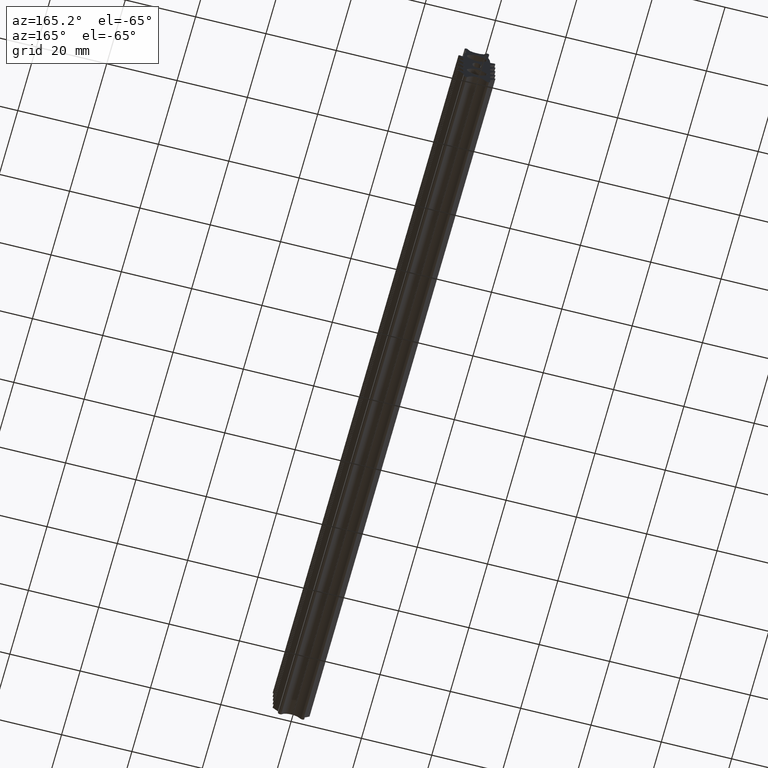
[diagram: clean part render]
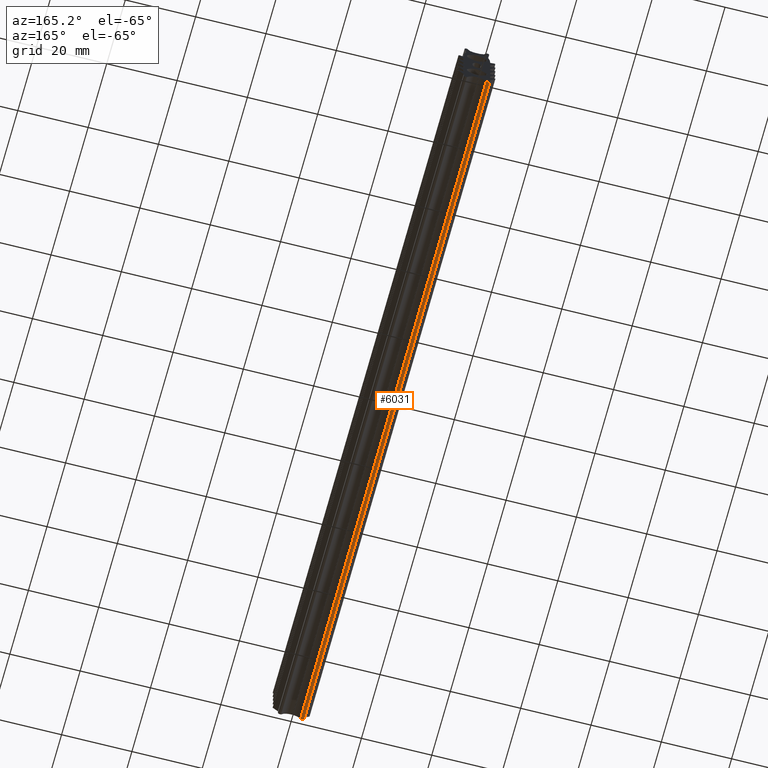
[diagram: same view with one face highlighted and labeled with its STEP entity id]
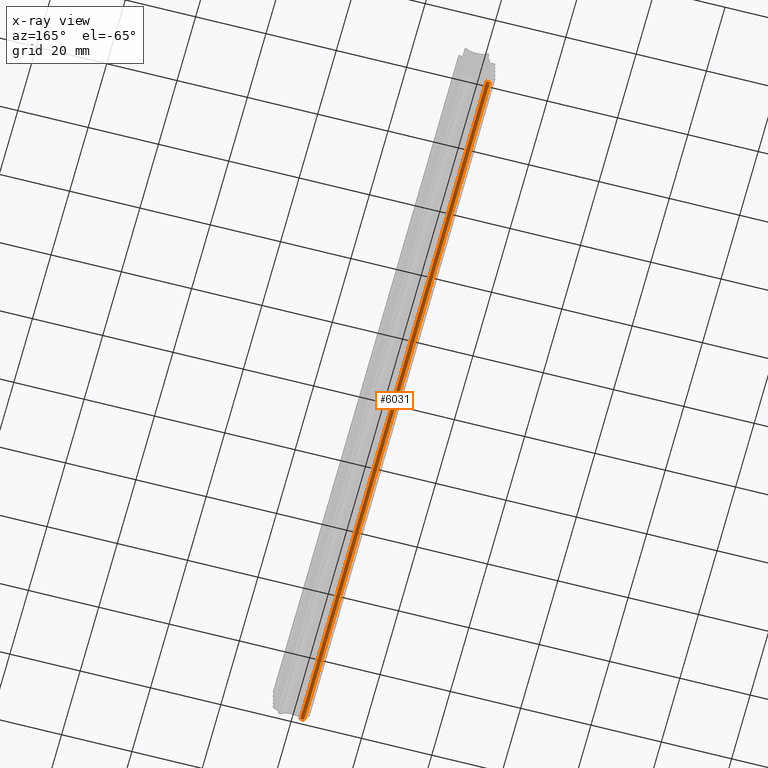
[diagram: x-ray of the same camera — body ghosted, the highlighted face saturated]
A machine part, auxiliary view. The second image highlights one B-rep face of the part: STEP entity #6031.
The next image is the same camera in x-ray: the body ghosted, the highlighted face saturated — about 0% of this face is hidden behind the body in this view.
In plain terms, the highlighted face is a freeform B-spline surface patch.
Its self-contained STEP definition (entity closure, byte-faithful):
#51=CARTESIAN_POINT('',(-2.665481674348870,0.0,-16.836471148593201));
#52=VERTEX_POINT('',#51);
#749=CARTESIAN_POINT('',(-3.750000000004805,0.0,-16.482575694958150));
#750=VERTEX_POINT('',#749);
#756=CARTESIAN_POINT('',(-3.750000000004815,0.0,-16.482575694958150));
#757=CARTESIAN_POINT('',(-3.750000000004815,0.0,-16.917922908533967));
#758=CARTESIAN_POINT('',(-3.336130336874483,0.0,-17.052975114397530));
#759=CARTESIAN_POINT('',(-2.922260673744152,0.0,-17.188027320261099));
#760=CARTESIAN_POINT('',(-2.665481674348869,0.0,-16.836471148593201));
#768=(BOUNDED_CURVE()B_SPLINE_CURVE(2,(#756,#757,#758,#759,#760),.UNSPECIFIED.,.F.,.U.)B_SPLINE_CURVE_WITH_KNOTS((3,2,3),(0.0,0.500000000000000,1.0),.UNSPECIFIED.)CURVE()GEOMETRIC_REPRESENTATION_ITEM()RATIONAL_B_SPLINE_CURVE((1.0,0.809387802019561,1.0,0.809387802019561,1.0))REPRESENTATION_ITEM(''));
#769=EDGE_CURVE('',#750,#52,#768,.T.);
#1915=CARTESIAN_POINT('',(-2.665481674348870,200.0,-16.836471148593201));
#1916=VERTEX_POINT('',#1915);
#1932=CARTESIAN_POINT('',(-3.750000000004805,200.0,-16.482575694958150));
#1933=VERTEX_POINT('',#1932);
#1934=CARTESIAN_POINT('',(-3.750000000004815,200.0,-16.482575694958150));
#1935=CARTESIAN_POINT('',(-3.750000000004815,200.000000000000060,-16.917922908533967));
#1936=CARTESIAN_POINT('',(-3.336130336874483,200.0,-17.052975114397530));
#1937=CARTESIAN_POINT('',(-2.922260673744152,200.000000000000060,-17.188027320261099));
#1938=CARTESIAN_POINT('',(-2.665481674348869,200.0,-16.836471148593201));
#1946=(BOUNDED_CURVE()B_SPLINE_CURVE(2,(#1934,#1935,#1936,#1937,#1938),.UNSPECIFIED.,.F.,.U.)B_SPLINE_CURVE_WITH_KNOTS((3,2,3),(0.0,0.500000000000000,1.0),.UNSPECIFIED.)CURVE()GEOMETRIC_REPRESENTATION_ITEM()RATIONAL_B_SPLINE_CURVE((1.0,0.809387802019561,1.0,0.809387802019561,1.0))REPRESENTATION_ITEM(''));
#1947=EDGE_CURVE('',#1933,#1916,#1946,.T.);
#5995=CARTESIAN_POINT('',(-3.750000000004805,200.0,-16.482575694958150));
#5996=CARTESIAN_POINT('',(-3.750000000004805,0.0,-16.482575694958150));
#5997=QUASI_UNIFORM_CURVE('',1,(#5995,#5996),.UNSPECIFIED.,.F.,.U.);
#5998=EDGE_CURVE('',#1933,#750,#5997,.T.);
#6003=CARTESIAN_POINT('',(-2.656383803681758,205.0,-16.823666666295061));
#6004=CARTESIAN_POINT('',(-2.656383803681758,-5.125000000000000,-16.823666666295061));
#6005=CARTESIAN_POINT('',(-2.913414286586182,205.000000000000060,-17.195633150230638));
#6006=CARTESIAN_POINT('',(-2.913414286586182,-5.125000000000000,-17.195633150230638));
#6007=CARTESIAN_POINT('',(-3.341818622438449,205.0,-17.051087450410630));
#6008=CARTESIAN_POINT('',(-3.341818622438449,-5.125000000000000,-17.051087450410630));
#6009=CARTESIAN_POINT('',(-3.770222958290718,205.000000000000060,-16.906541750590634));
#6010=CARTESIAN_POINT('',(-3.770222958290718,-5.125000000000000,-16.906541750590634));
#6011=CARTESIAN_POINT('',(-3.749360952096005,205.0,-16.454890877668849));
#6012=CARTESIAN_POINT('',(-3.749360952096005,-5.125000000000000,-16.454890877668849));
#6020=(BOUNDED_SURFACE()B_SPLINE_SURFACE(1,2,((#6003,#6005,#6007,#6009,#6011),(#6004,#6006,#6008,#6010,#6012)),.UNSPECIFIED.,.F.,.F.,.U.)B_SPLINE_SURFACE_WITH_KNOTS((2,2),(3,2,3),(0.0,210.125000000000000),(0.0,1.0,2.0),.UNSPECIFIED.)GEOMETRIC_REPRESENTATION_ITEM()RATIONAL_B_SPLINE_SURFACE(((1.0,0.798635510047293,1.0,0.798635510047293,1.0),(1.0,0.798635510047293,1.0,0.798635510047293,1.0)))REPRESENTATION_ITEM('')SURFACE());
#6021=ORIENTED_EDGE('',*,*,#769,.F.);
#6022=ORIENTED_EDGE('',*,*,#5998,.F.);
#6023=ORIENTED_EDGE('',*,*,#1947,.T.);
#6024=CARTESIAN_POINT('',(-2.665481674348870,200.0,-16.836471148593201));
#6025=CARTESIAN_POINT('',(-2.665481674348870,0.0,-16.836471148593201));
#6026=QUASI_UNIFORM_CURVE('',1,(#6024,#6025),.UNSPECIFIED.,.F.,.U.);
#6027=EDGE_CURVE('',#1916,#52,#6026,.T.);
#6028=ORIENTED_EDGE('',*,*,#6027,.T.);
#6029=EDGE_LOOP('',(#6021,#6022,#6023,#6028));
#6030=FACE_OUTER_BOUND('',#6029,.T.);
#6031=ADVANCED_FACE('',(#6030),#6020,.T.);